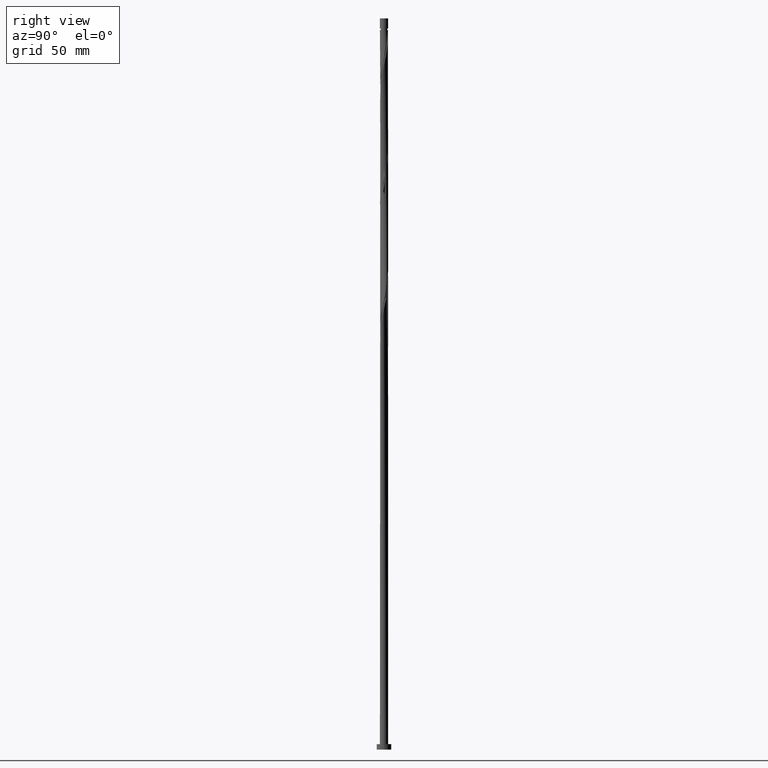
[diagram: clean part render]
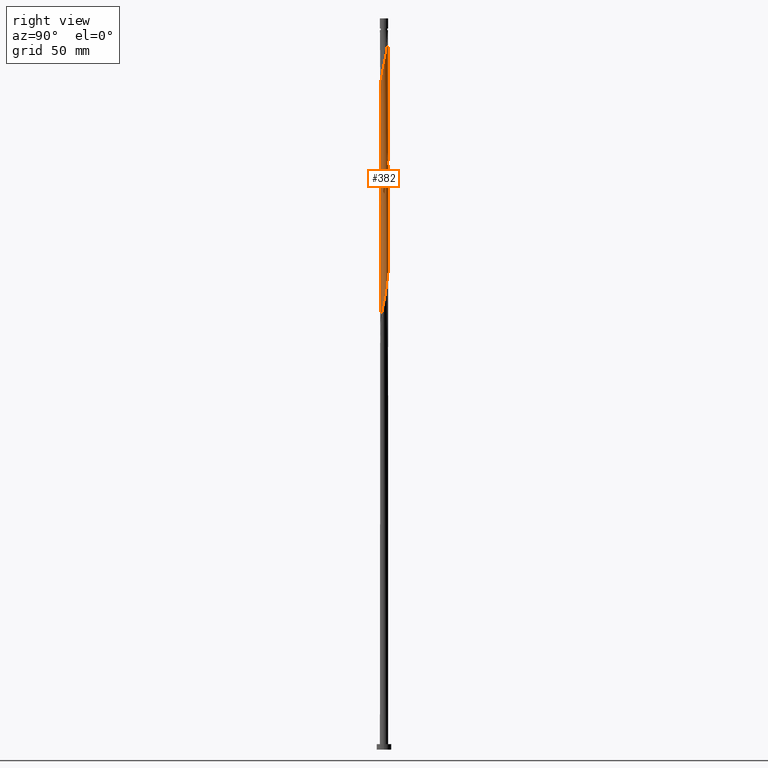
[diagram: same view with one face highlighted and labeled with its STEP entity id]
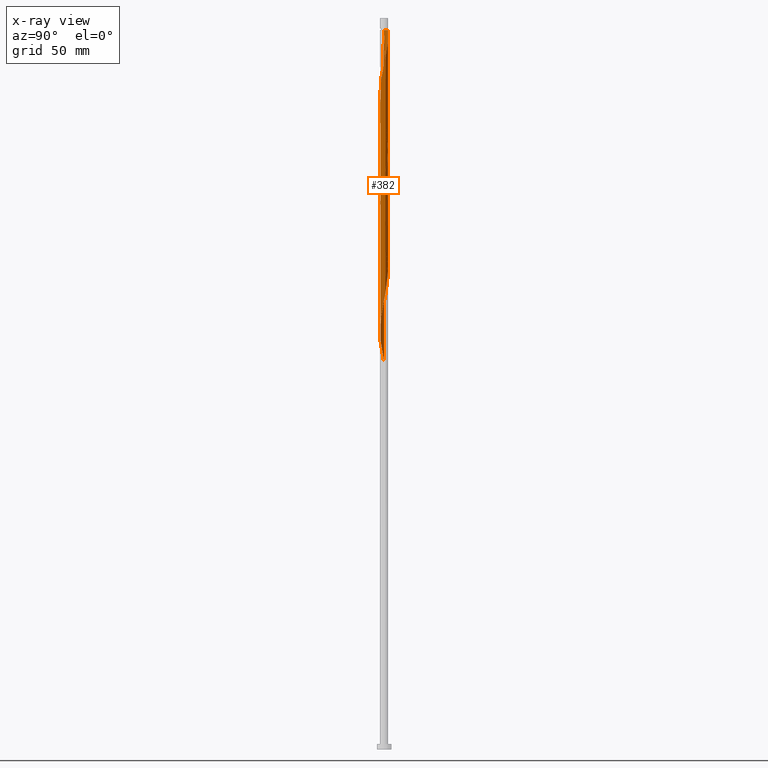
[diagram: x-ray of the same camera — body ghosted, the highlighted face saturated]
A machine part, right view. The second image highlights one B-rep face of the part: STEP entity #382.
The next image is the same camera in x-ray: the body ghosted, the highlighted face saturated — about 0% of this face is hidden behind the body in this view.
In plain terms, the highlighted cylindrical surface (bore or boss wall) has radius 2.25 mm, axis along (-0, -0, -1).
Its self-contained STEP definition (entity closure, byte-faithful):
#3 = CARTESIAN_POINT ( 'NONE',  ( 2.235440230695798114, 0.2555522940353255890, 246.9432032802033348 ) ) ;
#12 = EDGE_CURVE ( 'NONE', #1784, #830, #458, .T. ) ;
#15 = VECTOR ( 'NONE', #1606, 1000.000000000000000 ) ;
#16 = CARTESIAN_POINT ( 'NONE',  ( -2.217145756437552517, 0.4502106477325790168, 343.6098699468700488 ) ) ;
#21 = DIRECTION ( 'NONE',  ( -0.000000000000000000, -0.000000000000000000, -1.000000000000000000 ) ) ;
#22 = EDGE_CURVE ( 'NONE', #1098, #158, #1468, .T. ) ;
#23 = AXIS2_PLACEMENT_3D ( 'NONE', #1588, #313, #1311 ) ;
#38 = CARTESIAN_POINT ( 'NONE',  ( 0.2569599475139702771, -2.247753660434001599, 296.9432032802033063 ) ) ;
#49 = CARTESIAN_POINT ( 'NONE',  ( -0.8964053367179167786, -2.063724175441969511, 291.3876477246477634 ) ) ;
#55 = CARTESIAN_POINT ( 'NONE',  ( 0.000000000000000000, 0.000000000000000000, 393.6098699468699920 ) ) ;
#57 = VECTOR ( 'NONE', #747, 1000.000000000000000 ) ;
#59 = CARTESIAN_POINT ( 'NONE',  ( 1.148988371153736088, -1.948910119932245166, 234.7209810579811062 ) ) ;
#71 = CARTESIAN_POINT ( 'NONE',  ( 0.7186790202281153617, -2.145209872834075160, 299.1654255024255349 ) ) ;
#83 = CARTESIAN_POINT ( 'NONE',  ( 0.7186790202281153617, -2.145209872834075160, 232.4987588357588493 ) ) ;
#96 = CARTESIAN_POINT ( 'NONE',  ( 1.685713841995699624, 1.490257978641320147, 382.4987588357590198 ) ) ;
#101 = CARTESIAN_POINT ( 'NONE',  ( -2.249999999999999556, -1.091234325708519361E-15, 212.4019798570581656 ) ) ;
#106 = CARTESIAN_POINT ( 'NONE',  ( 2.058335775126532319, -0.9389775127526261977, 370.2765366135366776 ) ) ;
#115 = CARTESIAN_POINT ( 'NONE',  ( 1.148988371153740751, 1.948910119932247387, 385.8320921690922205 ) ) ;
#126 = CARTESIAN_POINT ( 'NONE',  ( 1.658299266918881409, -1.520704948810359447, 366.9432032802034200 ) ) ;
#144 = CARTESIAN_POINT ( 'NONE',  ( 2.250000000000000444, 0.1281909092544685491, 313.0075711664426876 ) ) ;
#158 = VERTEX_POINT ( 'NONE', #358 ) ;
#165 = CARTESIAN_POINT ( 'NONE',  ( -0.2569599475139706102, 2.247753660434001155, 330.2765366135365639 ) ) ;
#182 = CARTESIAN_POINT ( 'NONE',  ( 2.249999999999999556, 1.719067773376434329E-16, 312.4019798570580519 ) ) ;
#183 = CARTESIAN_POINT ( 'NONE',  ( -1.842346267189362896, 1.313082314401596618, 272.4987588357587924 ) ) ;
#201 = CARTESIAN_POINT ( 'NONE',  ( -1.498466736209437045, -1.694999225101496032, 288.0543143913143922 ) ) ;
#212 = CARTESIAN_POINT ( 'NONE',  ( -2.217145756437552517, 0.4502106477325790168, 276.9432032802031927 ) ) ;
#226 = CARTESIAN_POINT ( 'NONE',  ( 1.958719006165827281, -1.107212651158192118, 240.2765366135366776 ) ) ;
#228 = EDGE_CURVE ( 'NONE', #306, #1573, #1804, .T. ) ;
#239 = CARTESIAN_POINT ( 'NONE',  ( 0.7186790202281185813, 2.145209872834078713, 388.0543143913144490 ) ) ;
#240 = CARTESIAN_POINT ( 'NONE',  ( 1.842346267189362008, -1.313082314401597506, 305.8320921690921068 ) ) ;
#250 = CARTESIAN_POINT ( 'NONE',  ( 2.249999999999999556, 1.719067773376434329E-16, 312.4019798570580519 ) ) ;
#260 = CARTESIAN_POINT ( 'NONE',  ( -1.148988371153740085, -1.948910119932248275, 352.4987588357587356 ) ) ;
#262 = CARTESIAN_POINT ( 'NONE',  ( 2.250000000000000000, 2.755455298081544285E-16, 393.6098699468701057 ) ) ;
#273 = CARTESIAN_POINT ( 'NONE',  ( 0.02048521978840399382, 2.249906743794114927, 391.3876477246477066 ) ) ;
#281 = CARTESIAN_POINT ( 'NONE',  ( 2.075091745142295885, 0.9013429879147859536, 379.1654255024254780 ) ) ;
#292 = CARTESIAN_POINT ( 'NONE',  ( 1.339034893977880891, -1.808171881406644310, 302.4987588357588493 ) ) ;
#306 = VERTEX_POINT ( 'NONE', #574 ) ;
#313 = DIRECTION ( 'NONE',  ( -0.000000000000000000, -0.000000000000000000, -1.000000000000000000 ) ) ;
#320 = CARTESIAN_POINT ( 'NONE',  ( -0.9338336956909263353, 2.047059996383160829, 333.6098699468699351 ) ) ;
#328 = CARTESIAN_POINT ( 'NONE',  ( -1.339034893977881335, 1.808171881406644088, 335.8320921690923342 ) ) ;
#329 = CARTESIAN_POINT ( 'NONE',  ( -2.239722807784161773, 0.2148062948133313277, 278.0543143913145059 ) ) ;
#336 = CARTESIAN_POINT ( 'NONE',  ( 2.262299859130769253, 0.02059805810591510897, 245.8320921690921921 ) ) ;
#339 = CARTESIAN_POINT ( 'NONE',  ( -0.4477443466979827980, -2.204999999999999627, 293.6098699468699920 ) ) ;
#348 = CARTESIAN_POINT ( 'NONE',  ( -2.058335775126530098, -0.9389775127526234222, 283.6098699468699920 ) ) ;
#351 = DIRECTION ( 'NONE',  ( -0.000000000000000000, -0.000000000000000000, -1.000000000000000000 ) ) ;
#353 = CARTESIAN_POINT ( 'NONE',  ( -1.658299266918878745, -1.520704948810356116, 220.2765366135366207 ) ) ;
#358 = CARTESIAN_POINT ( 'NONE',  ( -2.250000000000000000, 3.587619700959514951E-16, 345.7353131903915369 ) ) ;
#382 = ADVANCED_FACE ( 'NONE', ( #546 ), #464, .T. ) ;
#396 = CARTESIAN_POINT ( 'NONE',  ( 1.685713841995694517, -1.490257978641320591, 304.7209810579811915 ) ) ;
#416 = CARTESIAN_POINT ( 'NONE',  ( 1.938233786377428158, -1.142694092635922587, 369.1654255024255917 ) ) ;
#426 = CARTESIAN_POINT ( 'NONE',  ( -2.217145756437556514, -0.4502106477325790723, 343.6098699468700488 ) ) ;
#435 = CARTESIAN_POINT ( 'NONE',  ( 1.529081416802029691, 1.667433642881044786, 383.6098699468698783 ) ) ;
#436 = CARTESIAN_POINT ( 'NONE',  ( 1.529081416802026361, -1.667433642881042122, 303.6098699468700488 ) ) ;
#440 = EDGE_LOOP ( 'NONE', ( #1396, #614, #484, #1175, #1591, #696, #739, #1016 ) ) ;
#444 = EDGE_CURVE ( 'NONE', #158, #830, #630, .T. ) ;
#446 = CARTESIAN_POINT ( 'NONE',  ( -0.02048521978840224869, 2.249906743794110930, 329.1654255024255917 ) ) ;
#458 = LINE ( 'NONE', #1305, #969 ) ;
#462 = CARTESIAN_POINT ( 'NONE',  ( 2.058335775126530542, 0.9389775127526232001, 250.2765366135366776 ) ) ;
#464 = CYLINDRICAL_SURFACE ( 'NONE', #23, 2.250000000000000000 ) ;
#473 = CARTESIAN_POINT ( 'NONE',  ( -2.250000000000000444, 3.587619700959514951E-16, 345.7353131903915369 ) ) ;
#482 = CARTESIAN_POINT ( 'NONE',  ( -2.075091745142291444, 0.9013429879147865087, 341.3876477246477066 ) ) ;
#483 = CARTESIAN_POINT ( 'NONE',  ( -1.938233786377425716, -1.142694092635919034, 284.7209810579811347 ) ) ;
#484 = ORIENTED_EDGE ( 'NONE', *, *, #228, .F. ) ;
#490 = CARTESIAN_POINT ( 'NONE',  ( 1.148988371153736088, -1.948910119932245166, 301.3876477246478203 ) ) ;
#495 = CARTESIAN_POINT ( 'NONE',  ( 0.4878194838710422920, -2.196481766634038379, 231.3876477246478487 ) ) ;
#498 = CARTESIAN_POINT ( 'NONE',  ( 0.2159895079371659254, 2.252059827154219818, 261.3876477246477066 ) ) ;
#522 = CARTESIAN_POINT ( 'NONE',  ( -0.6794991854587991709, -2.157940172845777660, 225.8320921690921921 ) ) ;
#527 = CARTESIAN_POINT ( 'NONE',  ( 1.958719006165827281, -1.107212651158192118, 306.9432032802033632 ) ) ;
#536 = CARTESIAN_POINT ( 'NONE',  ( 2.208580602260827863, -0.4905065299647383137, 372.4987588357589061 ) ) ;
#546 = FACE_OUTER_BOUND ( 'NONE', #440, .T. ) ;
#554 = CARTESIAN_POINT ( 'NONE',  ( 0.9338336956909291109, 2.047059996383163494, 386.9432032802032495 ) ) ;
#555 = CARTESIAN_POINT ( 'NONE',  ( 2.250000000000000444, -0.1076489983951914725, 311.8934313314941846 ) ) ;
#565 = CARTESIAN_POINT ( 'NONE',  ( 2.239722807784161773, -0.2148062948133320493, 311.3876477246478203 ) ) ;
#574 = CARTESIAN_POINT ( 'NONE',  ( -2.250000000000002665, 7.773176018745549002E-16, 341.4844267033483902 ) ) ;
#583 = CARTESIAN_POINT ( 'NONE',  ( 0.4477443466979830200, 2.204999999999999627, 326.9432032802033063 ) ) ;
#593 = CARTESIAN_POINT ( 'NONE',  ( 0.6794991854588006142, 2.157940172845777216, 325.8320921690922205 ) ) ;
#601 = CARTESIAN_POINT ( 'NONE',  ( 0.8964053367179171117, 2.063724175441969511, 324.7209810579811915 ) ) ;
#614 = ORIENTED_EDGE ( 'NONE', *, *, #1423, .T. ) ;
#619 = CARTESIAN_POINT ( 'NONE',  ( -0.9338336956909263353, 2.047059996383160829, 266.9432032802033063 ) ) ;
#630 =( BOUNDED_CURVE ( )  B_SPLINE_CURVE ( 2, ( #473, #1434, #1283, #16, #1031, #482, #1458, #1773, #1623, #882, #328, #1890, #320, #890, #1781, #165, #446, #752, #583, #593, #601, #1320, #736, #1474, #1466, #864, #1164, #1445, #1762, #721, #1021, #144, #182 ),
 .UNSPECIFIED., .F., .T. ) 
 B_SPLINE_CURVE_WITH_KNOTS ( ( 3, 2, 2, 2, 2, 2, 2, 2, 2, 2, 2, 2, 2, 2, 2, 2, 3 ),
 ( 0.4295286012773111839, 0.4333333333333333481, 0.4416666666666666519, 0.4500000000000000111, 0.4583333333333333148, 0.4666666666666666741, 0.4749999999999999778, 0.4833333333333333370, 0.4916666666666666408, 0.5000000000000000000, 0.5083333333333333037, 0.5166666666666667185, 0.5250000000000000222, 0.5333333333333333259, 0.5416666666666666297, 0.5500000000000000444, 0.5545286012773115170 ),
 .UNSPECIFIED. ) 
 CURVE ( )  GEOMETRIC_REPRESENTATION_ITEM ( )  RATIONAL_B_SPLINE_CURVE ( ( 0.9066196499552607868, 0.9068171577856734000, 0.9090909090909725654, 0.9041108139712207281, 0.9090909090909725654, 0.9041108139712207281, 0.9090909090909725654, 0.9041108139712207281, 0.9090909090909725654, 0.9041108139712207281, 0.9090909090909725654, 0.9041108139712207281, 0.9090909090909725654, 0.9041108139712207281, 0.9090909090909725654, 0.9041108139712207281, 0.9090909090909725654, 0.9041108139712207281, 0.9090909090909725654, 0.9041108139712207281, 0.9090909090909725654, 0.9041108139712207281, 0.9090909090909725654, 0.9041108139712207281, 0.9090909090909725654, 0.9041108139712207281, 0.9090909090909725654, 0.9041108139712207281, 0.9090909090909725654, 0.9041108139712207281, 0.9090909090909725654, 0.9063845652765196714, 0.9066196499552607868 ) ) 
 REPRESENTATION_ITEM ( '' )  );
#638 = CARTESIAN_POINT ( 'NONE',  ( -0.02048521978840224869, 2.249906743794110930, 262.4987588357589061 ) ) ;
#650 = CARTESIAN_POINT ( 'NONE',  ( -2.235440230695798114, -0.2555522940353258110, 213.6098699468700772 ) ) ;
#672 = CARTESIAN_POINT ( 'NONE',  ( 2.262299859130773694, -0.02059805810591844311, 374.7209810579810210 ) ) ;
#675 = EDGE_CURVE ( 'NONE', #306, #1268, #1755, .T. ) ;
#680 = CARTESIAN_POINT ( 'NONE',  ( 1.958719006165831056, 1.107212651158192784, 380.2765366135366776 ) ) ;
#692 = CARTESIAN_POINT ( 'NONE',  ( -1.842346267189367337, -1.313082314401598394, 348.0543143913143354 ) ) ;
#696 = ORIENTED_EDGE ( 'NONE', *, *, #12, .F. ) ;
#702 = CARTESIAN_POINT ( 'NONE',  ( 0.2569599475139721645, 2.247753660434005152, 390.2765366135366776 ) ) ;
#721 = CARTESIAN_POINT ( 'NONE',  ( 2.208580602260824755, 0.4905065299647340393, 314.7209810579810778 ) ) ;
#736 = CARTESIAN_POINT ( 'NONE',  ( 1.305889112093236326, 1.832253701569827919, 322.4987588357589061 ) ) ;
#739 = ORIENTED_EDGE ( 'NONE', *, *, #12, .T. ) ;
#747 = DIRECTION ( 'NONE',  ( -0.000000000000000000, -0.000000000000000000, -1.000000000000000000 ) ) ;
#749 = CARTESIAN_POINT ( 'NONE',  ( 0.8964053367179171117, 2.063724175441969511, 258.0543143913145059 ) ) ;
#752 = CARTESIAN_POINT ( 'NONE',  ( 0.2159895079371659254, 2.252059827154219818, 328.0543143913144490 ) ) ;
#753 = CARTESIAN_POINT ( 'NONE',  ( -0.2159895079371669246, -2.252059827154220706, 294.7209810579811347 ) ) ;
#758 = CARTESIAN_POINT ( 'NONE',  ( 2.146118750789921759, -0.6757768178236842616, 242.4987588357589061 ) ) ;
#779 = CARTESIAN_POINT ( 'NONE',  ( -1.305889112093234994, -1.832253701569828808, 222.4987588357589061 ) ) ;
#789 = CARTESIAN_POINT ( 'NONE',  ( -1.818131797628320667, -1.346410672519214868, 219.1654255024255065 ) ) ;
#797 = CARTESIAN_POINT ( 'NONE',  ( 2.217145756437552517, -0.4502106477325793499, 243.6098699468699351 ) ) ;
#807 = CARTESIAN_POINT ( 'NONE',  ( -2.075091745142295441, -0.9013429879147869528, 345.8320921690922773 ) ) ;
#816 = CARTESIAN_POINT ( 'NONE',  ( -2.146118750789926644, -0.6757768178236830403, 344.7209810579810778 ) ) ;
#825 = CARTESIAN_POINT ( 'NONE',  ( 1.305889112093235882, -1.832253701569833249, 364.7209810579810778 ) ) ;
#830 = VERTEX_POINT ( 'NONE', #913 ) ;
#834 = CARTESIAN_POINT ( 'NONE',  ( 0.4878194838710463443, 2.196481766634041044, 389.1654255024256486 ) ) ;
#851 = CARTESIAN_POINT ( 'NONE',  ( 1.498466736209437267, 1.694999225101495144, 254.7209810579810778 ) ) ;
#861 = CARTESIAN_POINT ( 'NONE',  ( 2.208580602260824755, 0.4905065299647340393, 248.0543143913144775 ) ) ;
#864 = CARTESIAN_POINT ( 'NONE',  ( 1.818131797628321555, 1.346410672519213536, 319.1654255024255349 ) ) ;
#873 = CARTESIAN_POINT ( 'NONE',  ( 0.6794991854588006142, 2.157940172845777216, 259.1654255024254780 ) ) ;
#882 = CARTESIAN_POINT ( 'NONE',  ( -1.529081416802026583, 1.667433642881041900, 336.9432032802034200 ) ) ;
#886 = CIRCLE ( 'NONE', #1159, 2.249999999999964029 ) ;
#890 = CARTESIAN_POINT ( 'NONE',  ( -0.7186790202281158058, 2.145209872834075160, 332.4987588357589630 ) ) ;
#891 = CARTESIAN_POINT ( 'NONE',  ( -2.133458188693677204, -0.7147420213586793691, 282.4987588357589630 ) ) ;
#900 = CARTESIAN_POINT ( 'NONE',  ( -1.339034893977881335, 1.808171881406644088, 269.1654255024254780 ) ) ;
#911 = CARTESIAN_POINT ( 'NONE',  ( -2.208580602260824755, -0.4905065299647350385, 281.3876477246477634 ) ) ;
#913 = CARTESIAN_POINT ( 'NONE',  ( 2.249999999999999556, 1.719067773376434329E-16, 312.4019798570581088 ) ) ;
#927 = CARTESIAN_POINT ( 'NONE',  ( -1.498466736209437045, -1.694999225101496032, 221.3876477246477918 ) ) ;
#952 = CARTESIAN_POINT ( 'NONE',  ( -0.02048521978840372668, -2.249906743794114927, 358.0543143913145059 ) ) ;
#968 = CARTESIAN_POINT ( 'NONE',  ( 2.133458188693681201, -0.7147420213586823667, 371.3876477246477634 ) ) ;
#969 = VECTOR ( 'NONE', #21, 1000.000000000000000 ) ;
#978 = CARTESIAN_POINT ( 'NONE',  ( 1.498466736209437933, -1.694999225101500251, 365.8320921690920500 ) ) ;
#988 = CARTESIAN_POINT ( 'NONE',  ( -0.4878194838710451786, -2.196481766634041044, 355.8320921690921637 ) ) ;
#996 = CARTESIAN_POINT ( 'NONE',  ( 2.133458188693677648, 0.7147420213586779258, 249.1654255024255917 ) ) ;
#1000 =( BOUNDED_CURVE ( )  B_SPLINE_CURVE ( 2, ( #250, #555, #565, #1116, #1127, #1724, #527, #240, #396, #436, #292, #490, #1041, #71, #1195, #38, #1507, #753, #339, #1052, #49, #1330, #1807, #201, #1782, #1643, #483, #348, #891, #911, #1475, #1654, #329, #212, #1321, #1354, #1796, #183, #1032, #1495, #900, #1345, #619, #1183, #1635, #1486, #638, #498, #1059, #873, #749, #1038, #1300, #851, #1613, #1150, #1753, #462, #996, #861, #3, #336, #1341, #797, #758, #1791, #226, #1664, #1813, #1368, #1802, #59, #1204, #83, #495, #1056, #1650, #1224, #1831, #522, #1640, #1482, #779, #927, #353, #789, #1361, #1503, #1083, #1351, #650, #1217, #101 ),
 .UNSPECIFIED., .F., .T. ) 
 B_SPLINE_CURVE_WITH_KNOTS ( ( 3, 2, 2, 2, 2, 2, 2, 2, 2, 2, 2, 2, 2, 2, 2, 2, 2, 2, 2, 2, 2, 2, 2, 2, 2, 2, 2, 2, 2, 2, 2, 2, 2, 2, 2, 2, 2, 2, 2, 2, 2, 2, 2, 2, 2, 2, 3 ),
 ( 0.5545286012773115170, 0.5583333333333333481, 0.5666666666666666519, 0.5749999999999999556, 0.5833333333333333703, 0.5916666666666666741, 0.5999999999999999778, 0.6083333333333332815, 0.6166666666666666963, 0.6250000000000000000, 0.6333333333333333037, 0.6416666666666667185, 0.6500000000000000222, 0.6583333333333333259, 0.6666666666666666297, 0.6750000000000000444, 0.6833333333333333481, 0.6916666666666666519, 0.6999999999999999556, 0.7083333333333333703, 0.7166666666666666741, 0.7249999999999999778, 0.7333333333333332815, 0.7416666666666666963, 0.7500000000000000000, 0.7583333333333333037, 0.7666666666666667185, 0.7750000000000000222, 0.7833333333333333259, 0.7916666666666666297, 0.8000000000000000444, 0.8083333333333333481, 0.8166666666666666519, 0.8249999999999999556, 0.8333333333333333703, 0.8416666666666666741, 0.8499999999999999778, 0.8583333333333332815, 0.8666666666666666963, 0.8750000000000000000, 0.8833333333333333037, 0.8916666666666667185, 0.9000000000000001332, 0.9083333333333334370, 0.9166666666666667407, 0.9250000000000000444, 0.9295286012773114059 ),
 .UNSPECIFIED. ) 
 CURVE ( )  GEOMETRIC_REPRESENTATION_ITEM ( )  RATIONAL_B_SPLINE_CURVE ( ( 0.9066196499552607868, 0.9068171577856736221, 0.9090909090909725654, 0.9041108139712207281, 0.9090909090909725654, 0.9041108139712207281, 0.9090909090909725654, 0.9041108139712207281, 0.9090909090909725654, 0.9041108139712207281, 0.9090909090909725654, 0.9041108139712207281, 0.9090909090909725654, 0.9041108139712207281, 0.9090909090909725654, 0.9041108139712207281, 0.9090909090909725654, 0.9041108139712207281, 0.9090909090909725654, 0.9041108139712207281, 0.9090909090909725654, 0.9041108139712207281, 0.9090909090909725654, 0.9041108139712207281, 0.9090909090909725654, 0.9041108139712207281, 0.9090909090909725654, 0.9041108139712207281, 0.9090909090909725654, 0.9041108139712207281, 0.9090909090909725654, 0.9041108139712207281, 0.9090909090909725654, 0.9041108139712207281, 0.9090909090909725654, 0.9041108139712207281, 0.9090909090909725654, 0.9041108139712207281, 0.9090909090909725654, 0.9041108139712207281, 0.9090909090909725654, 0.9041108139712207281, 0.9090909090909725654, 0.9041108139712207281, 0.9090909090909725654, 0.9041108139712207281, 0.9090909090909725654, 0.9041108139712207281, 0.9090909090909725654, 0.9041108139712207281, 0.9090909090909725654, 0.9041108139712207281, 0.9090909090909725654, 0.9041108139712207281, 0.9090909090909725654, 0.9041108139712207281, 0.9090909090909725654, 0.9041108139712207281, 0.9090909090909725654, 0.9041108139712207281, 0.9090909090909725654, 0.9041108139712207281, 0.9090909090909725654, 0.9041108139712207281, 0.9090909090909725654, 0.9041108139712207281, 0.9090909090909725654, 0.9041108139712207281, 0.9090909090909725654, 0.9041108139712207281, 0.9090909090909725654, 0.9041108139712207281, 0.9090909090909725654, 0.9041108139712207281, 0.9090909090909725654, 0.9041108139712207281, 0.9090909090909725654, 0.9041108139712207281, 0.9090909090909725654, 0.9041108139712207281, 0.9090909090909725654, 0.9041108139712207281, 0.9090909090909725654, 0.9041108139712207281, 0.9090909090909725654, 0.9041108139712207281, 0.9090909090909725654, 0.9041108139712207281, 0.9090909090909725654, 0.9041108139712207281, 0.9090909090909725654, 0.9063845652765196714, 0.9066196499552608978 ) ) 
 REPRESENTATION_ITEM ( '' )  );
#1013 = CARTESIAN_POINT ( 'NONE',  ( -2.250000000000000000, 0.000000000000000000, 400.0000000000000000 ) ) ;
#1016 = ORIENTED_EDGE ( 'NONE', *, *, #444, .F. ) ;
#1018 = EDGE_CURVE ( 'NONE', #830, #1268, #1000, .T. ) ;
#1021 = CARTESIAN_POINT ( 'NONE',  ( 2.235440230695798114, 0.2555522940353255890, 313.6098699468699920 ) ) ;
#1026 = CARTESIAN_POINT ( 'NONE',  ( -2.250000000000000000, 0.000000000000000000, 400.0000000000000000 ) ) ;
#1031 = CARTESIAN_POINT ( 'NONE',  ( -2.146118750789922203, 0.6757768178236830403, 342.4987588357589630 ) ) ;
#1032 = CARTESIAN_POINT ( 'NONE',  ( -1.685713841995694739, 1.490257978641319481, 271.3876477246478203 ) ) ;
#1038 = CARTESIAN_POINT ( 'NONE',  ( 1.113311487977033387, 1.969508178038161583, 256.9432032802033063 ) ) ;
#1041 = CARTESIAN_POINT ( 'NONE',  ( 0.9338336956909261133, -2.047059996383160829, 300.2765366135366776 ) ) ;
#1052 = CARTESIAN_POINT ( 'NONE',  ( -0.6794991854587991709, -2.157940172845777660, 292.4987588357588493 ) ) ;
#1056 = CARTESIAN_POINT ( 'NONE',  ( 0.2569599475139702771, -2.247753660434001599, 230.2765366135366776 ) ) ;
#1059 = CARTESIAN_POINT ( 'NONE',  ( 0.4477443466979830200, 2.204999999999999627, 260.2765366135367344 ) ) ;
#1083 = CARTESIAN_POINT ( 'NONE',  ( -2.133458188693677204, -0.7147420213586793691, 215.8320921690922489 ) ) ;
#1095 = CARTESIAN_POINT ( 'NONE',  ( 0.4477443466979825759, -2.205000000000003180, 360.2765366135365639 ) ) ;
#1098 = VERTEX_POINT ( 'NONE', #1491 ) ;
#1105 = CARTESIAN_POINT ( 'NONE',  ( -2.239722807784164438, -0.2148062948133304950, 342.4987588357590198 ) ) ;
#1115 = CARTESIAN_POINT ( 'NONE',  ( -0.9338336956909288888, -2.047059996383163494, 353.6098699468700488 ) ) ;
#1116 = CARTESIAN_POINT ( 'NONE',  ( 2.217145756437552517, -0.4502106477325793499, 310.2765366135366776 ) ) ;
#1125 = CARTESIAN_POINT ( 'NONE',  ( -0.4477443466980506326, 2.205000000000589377, 393.6098699468701057 ) ) ;
#1127 = CARTESIAN_POINT ( 'NONE',  ( 2.146118750789921759, -0.6757768178236842616, 309.1654255024256486 ) ) ;
#1150 = CARTESIAN_POINT ( 'NONE',  ( 1.818131797628321555, 1.346410672519213536, 252.4987588357589630 ) ) ;
#1159 = AXIS2_PLACEMENT_3D ( 'NONE', #55, #351, #1178 ) ;
#1164 = CARTESIAN_POINT ( 'NONE',  ( 1.938233786377425716, 1.142694092635918812, 318.0543143913146196 ) ) ;
#1175 = ORIENTED_EDGE ( 'NONE', *, *, #675, .T. ) ;
#1178 = DIRECTION ( 'NONE',  ( -1.000000000000000000, 0.000000000000000000, 0.000000000000000000 ) ) ;
#1183 = CARTESIAN_POINT ( 'NONE',  ( -0.7186790202281158058, 2.145209872834075160, 265.8320921690922205 ) ) ;
#1195 = CARTESIAN_POINT ( 'NONE',  ( 0.4878194838710422920, -2.196481766634038379, 298.0543143913145059 ) ) ;
#1196 = CARTESIAN_POINT ( 'NONE',  ( -0.4477443466980506326, 2.205000000000589377, 393.6098699468701057 ) ) ;
#1204 = CARTESIAN_POINT ( 'NONE',  ( 0.9338336956909261133, -2.047059996383160829, 233.6098699468700204 ) ) ;
#1217 = CARTESIAN_POINT ( 'NONE',  ( -2.250000000000000444, -0.1281909092544724904, 213.0075711664426876 ) ) ;
#1224 = CARTESIAN_POINT ( 'NONE',  ( -0.2159895079371669246, -2.252059827154220706, 228.0543143913144206 ) ) ;
#1236 = CARTESIAN_POINT ( 'NONE',  ( -2.250000000000002665, 7.773176018745549002E-16, 341.4844267033483902 ) ) ;
#1245 = CARTESIAN_POINT ( 'NONE',  ( -0.7186790202281182482, -2.145209872834078713, 354.7209810579811347 ) ) ;
#1255 = CARTESIAN_POINT ( 'NONE',  ( -0.2569599475139717204, -2.247753660434005152, 356.9432032802032495 ) ) ;
#1264 = CARTESIAN_POINT ( 'NONE',  ( -0.2159895079371639826, 2.252059827154224259, 392.4987588357589061 ) ) ;
#1268 = VERTEX_POINT ( 'NONE', #1658 ) ;
#1274 = CARTESIAN_POINT ( 'NONE',  ( 0.2159895079371652871, -2.252059827154224259, 359.1654255024254780 ) ) ;
#1283 = CARTESIAN_POINT ( 'NONE',  ( -2.239722807784161773, 0.2148062948133313277, 344.7209810579811915 ) ) ;
#1300 = CARTESIAN_POINT ( 'NONE',  ( 1.305889112093236326, 1.832253701569827919, 255.8320921690921921 ) ) ;
#1305 = CARTESIAN_POINT ( 'NONE',  ( 2.250000000000000000, 2.755455298081544285E-16, 400.0000000000000000 ) ) ;
#1311 = DIRECTION ( 'NONE',  ( -1.000000000000000000, 0.000000000000000000, 0.000000000000000000 ) ) ;
#1320 = CARTESIAN_POINT ( 'NONE',  ( 1.113311487977033387, 1.969508178038161583, 323.6098699468700488 ) ) ;
#1321 = CARTESIAN_POINT ( 'NONE',  ( -2.146118750789922203, 0.6757768178236830403, 275.8320921690922773 ) ) ;
#1330 = CARTESIAN_POINT ( 'NONE',  ( -1.113311487977033165, -1.969508178038161583, 290.2765366135366207 ) ) ;
#1341 = CARTESIAN_POINT ( 'NONE',  ( 2.239722807784161773, -0.2148062948133320493, 244.7209810579811631 ) ) ;
#1345 = CARTESIAN_POINT ( 'NONE',  ( -1.148988371153736976, 1.948910119932245166, 268.0543143913144490 ) ) ;
#1351 = CARTESIAN_POINT ( 'NONE',  ( -2.208580602260824755, -0.4905065299647350385, 214.7209810579810494 ) ) ;
#1354 = CARTESIAN_POINT ( 'NONE',  ( -2.075091745142291444, 0.9013429879147865087, 274.7209810579811347 ) ) ;
#1361 = CARTESIAN_POINT ( 'NONE',  ( -1.938233786377425716, -1.142694092635919034, 218.0543143913145059 ) ) ;
#1368 = CARTESIAN_POINT ( 'NONE',  ( 1.529081416802026361, -1.667433642881042122, 236.9432032802032779 ) ) ;
#1392 = CARTESIAN_POINT ( 'NONE',  ( 1.818131797628322888, -1.346410672519218421, 368.0543143913144490 ) ) ;
#1396 = ORIENTED_EDGE ( 'NONE', *, *, #22, .F. ) ;
#1404 = CARTESIAN_POINT ( 'NONE',  ( 1.339034893977885332, 1.808171881406645642, 384.7209810579810778 ) ) ;
#1415 = CARTESIAN_POINT ( 'NONE',  ( -1.958719006165831056, -1.107212651158192784, 346.9432032802033632 ) ) ;
#1423 = EDGE_CURVE ( 'NONE', #1098, #1573, #886, .T. ) ;
#1424 = CARTESIAN_POINT ( 'NONE',  ( 2.239722807784165326, 0.2148062948133293015, 375.8320921690921637 ) ) ;
#1434 = CARTESIAN_POINT ( 'NONE',  ( -2.250000000000000888, 0.1076489983951817858, 345.2267646648274990 ) ) ;
#1445 = CARTESIAN_POINT ( 'NONE',  ( 2.058335775126530542, 0.9389775127526232001, 316.9432032802033063 ) ) ;
#1458 = CARTESIAN_POINT ( 'NONE',  ( -1.958719006165827281, 1.107212651158191452, 340.2765366135367344 ) ) ;
#1466 = CARTESIAN_POINT ( 'NONE',  ( 1.658299266918879189, 1.520704948810356116, 320.2765366135365070 ) ) ;
#1468 = LINE ( 'NONE', #1026, #57 ) ;
#1474 = CARTESIAN_POINT ( 'NONE',  ( 1.498466736209437267, 1.694999225101495144, 321.3876477246477066 ) ) ;
#1475 = CARTESIAN_POINT ( 'NONE',  ( -2.235440230695798114, -0.2555522940353258110, 280.2765366135366776 ) ) ;
#1482 = CARTESIAN_POINT ( 'NONE',  ( -1.113311487977033165, -1.969508178038161583, 223.6098699468699920 ) ) ;
#1486 = CARTESIAN_POINT ( 'NONE',  ( -0.2569599475139706102, 2.247753660434001155, 263.6098699468699920 ) ) ;
#1491 = CARTESIAN_POINT ( 'NONE',  ( -2.249999999999964029, 0.000000000000000000, 393.6098699468699920 ) ) ;
#1495 = CARTESIAN_POINT ( 'NONE',  ( -1.529081416802026583, 1.667433642881041900, 270.2765366135366776 ) ) ;
#1503 = CARTESIAN_POINT ( 'NONE',  ( -2.058335775126530098, -0.9389775127526234222, 216.9432032802033348 ) ) ;
#1507 = CARTESIAN_POINT ( 'NONE',  ( 0.02048521978840171440, -2.249906743794110930, 295.8320921690921637 ) ) ;
#1558 = CARTESIAN_POINT ( 'NONE',  ( -2.250000000000003997, -0.1076489983951769008, 341.9929752289124849 ) ) ;
#1569 = CARTESIAN_POINT ( 'NONE',  ( 2.235440230695801667, -0.2555522940353273098, 373.6098699468699920 ) ) ;
#1573 = VERTEX_POINT ( 'NONE', #1196 ) ;
#1579 = CARTESIAN_POINT ( 'NONE',  ( -1.685713841995698958, -1.490257978641321257, 349.1654255024255349 ) ) ;
#1588 = CARTESIAN_POINT ( 'NONE',  ( 0.000000000000000000, 0.000000000000000000, 400.0000000000000000 ) ) ;
#1591 = ORIENTED_EDGE ( 'NONE', *, *, #1018, .F. ) ;
#1606 = DIRECTION ( 'NONE',  ( -0.000000000000000000, -0.000000000000000000, -1.000000000000000000 ) ) ;
#1613 = CARTESIAN_POINT ( 'NONE',  ( 1.658299266918879189, 1.520704948810356116, 253.6098699468700204 ) ) ;
#1623 = CARTESIAN_POINT ( 'NONE',  ( -1.685713841995694739, 1.490257978641319481, 338.0543143913143922 ) ) ;
#1635 = CARTESIAN_POINT ( 'NONE',  ( -0.4878194838710431802, 2.196481766634038379, 264.7209810579811347 ) ) ;
#1640 = CARTESIAN_POINT ( 'NONE',  ( -0.8964053367179167786, -2.063724175441969511, 224.7209810579811347 ) ) ;
#1643 = CARTESIAN_POINT ( 'NONE',  ( -1.818131797628320667, -1.346410672519214868, 285.8320921690921068 ) ) ;
#1650 = CARTESIAN_POINT ( 'NONE',  ( 0.02048521978840171440, -2.249906743794110930, 229.1654255024255917 ) ) ;
#1654 = CARTESIAN_POINT ( 'NONE',  ( -2.262299859130769697, -0.02059805810591643777, 279.1654255024255349 ) ) ;
#1658 = CARTESIAN_POINT ( 'NONE',  ( -2.249999999999999556, -1.091234325708519361E-15, 212.4019798570581656 ) ) ;
#1664 = CARTESIAN_POINT ( 'NONE',  ( 1.842346267189362008, -1.313082314401597506, 239.1654255024255065 ) ) ;
#1695 = CARTESIAN_POINT ( 'NONE',  ( 2.217145756437556514, 0.4502106477325789058, 376.9432032802033632 ) ) ;
#1704 = CARTESIAN_POINT ( 'NONE',  ( 0.6794991854587989488, -2.157940172845781657, 361.3876477246477634 ) ) ;
#1713 = CARTESIAN_POINT ( 'NONE',  ( 0.8964053367179166676, -2.063724175441973951, 362.4987588357589061 ) ) ;
#1724 = CARTESIAN_POINT ( 'NONE',  ( 2.075091745142291000, -0.9013429879147871748, 308.0543143913145059 ) ) ;
#1732 = CARTESIAN_POINT ( 'NONE',  ( 2.146118750789926644, 0.6757768178236822632, 378.0543143913145627 ) ) ;
#1753 = CARTESIAN_POINT ( 'NONE',  ( 1.938233786377425716, 1.142694092635918812, 251.3876477246477918 ) ) ;
#1755 = LINE ( 'NONE', #1013, #15 ) ;
#1762 = CARTESIAN_POINT ( 'NONE',  ( 2.133458188693677648, 0.7147420213586779258, 315.8320921690922205 ) ) ;
#1773 = CARTESIAN_POINT ( 'NONE',  ( -1.842346267189362896, 1.313082314401596618, 339.1654255024254780 ) ) ;
#1781 = CARTESIAN_POINT ( 'NONE',  ( -0.4878194838710431802, 2.196481766634038379, 331.3876477246478203 ) ) ;
#1782 = CARTESIAN_POINT ( 'NONE',  ( -1.658299266918878745, -1.520704948810356116, 286.9432032802034200 ) ) ;
#1784 = VERTEX_POINT ( 'NONE', #262 ) ;
#1791 = CARTESIAN_POINT ( 'NONE',  ( 2.075091745142291000, -0.9013429879147871748, 241.3876477246477350 ) ) ;
#1796 = CARTESIAN_POINT ( 'NONE',  ( -1.958719006165827281, 1.107212651158191452, 273.6098699468699920 ) ) ;
#1802 = CARTESIAN_POINT ( 'NONE',  ( 1.339034893977880891, -1.808171881406644310, 235.8320921690922489 ) ) ;
#1804 =( BOUNDED_CURVE ( )  B_SPLINE_CURVE ( 2, ( #1236, #1558, #1105, #426, #816, #807, #1415, #692, #1579, #1844, #1872, #260, #1115, #1245, #988, #1255, #952, #1274, #1095, #1704, #1713, #1882, #825, #978, #126, #1392, #416, #106, #968, #536, #1569, #672, #1424, #1695, #1732, #281, #680, #1865, #96, #435, #1404, #115, #554, #239, #834, #702, #273, #1264, #1125 ),
 .UNSPECIFIED., .F., .T. ) 
 B_SPLINE_CURVE_WITH_KNOTS ( ( 3, 2, 2, 2, 2, 2, 2, 2, 2, 2, 2, 2, 2, 2, 2, 2, 2, 2, 2, 2, 2, 2, 2, 2, 3 ),
 ( 0.5545286012773110729, 0.5583333333333333481, 0.5666666666666666519, 0.5749999999999999556, 0.5833333333333332593, 0.5916666666666666741, 0.5999999999999999778, 0.6083333333333333925, 0.6166666666666666963, 0.6250000000000000000, 0.6333333333333333037, 0.6416666666666666075, 0.6500000000000000222, 0.6583333333333333259, 0.6666666666666667407, 0.6750000000000000444, 0.6833333333333333481, 0.6916666666666666519, 0.6999999999999999556, 0.7083333333333332593, 0.7166666666666666741, 0.7249999999999999778, 0.7333333333333333925, 0.7416666666666666963, 0.7500000000000000000 ),
 .UNSPECIFIED. ) 
 CURVE ( )  GEOMETRIC_REPRESENTATION_ITEM ( )  RATIONAL_B_SPLINE_CURVE ( ( 0.9066196499552687804, 0.9068171577856811716, 0.9090909090909804480, 0.9041108139712286107, 0.9090909090909804480, 0.9041108139712286107, 0.9090909090909804480, 0.9041108139712286107, 0.9090909090909804480, 0.9041108139712286107, 0.9090909090909804480, 0.9041108139712286107, 0.9090909090909804480, 0.9041108139712286107, 0.9090909090909804480, 0.9041108139712286107, 0.9090909090909804480, 0.9041108139712286107, 0.9090909090909804480, 0.9041108139712286107, 0.9090909090909804480, 0.9041108139712286107, 0.9090909090909804480, 0.9041108139712286107, 0.9090909090909804480, 0.9041108139712286107, 0.9090909090909804480, 0.9041108139712286107, 0.9090909090909804480, 0.9041108139712286107, 0.9090909090909804480, 0.9041108139712286107, 0.9090909090909804480, 0.9041108139712286107, 0.9090909090909804480, 0.9041108139712286107, 0.9090909090909804480, 0.9041108139712286107, 0.9090909090909804480, 0.9041108139712286107, 0.9090909090909804480, 0.9041108139712286107, 0.9090909090909804480, 0.9041108139712286107, 0.9090909090909804480, 0.9041108139712286107, 0.9090909090909804480, 0.9041108139712286107, 0.9090909090909804480 ) ) 
 REPRESENTATION_ITEM ( '' )  );
#1807 = CARTESIAN_POINT ( 'NONE',  ( -1.305889112093234994, -1.832253701569828808, 289.1654255024255349 ) ) ;
#1813 = CARTESIAN_POINT ( 'NONE',  ( 1.685713841995694517, -1.490257978641320591, 238.0543143913144206 ) ) ;
#1831 = CARTESIAN_POINT ( 'NONE',  ( -0.4477443466979827980, -2.204999999999999627, 226.9432032802033632 ) ) ;
#1844 = CARTESIAN_POINT ( 'NONE',  ( -1.529081416802029691, -1.667433642881045008, 350.2765366135366207 ) ) ;
#1865 = CARTESIAN_POINT ( 'NONE',  ( 1.842346267189367559, 1.313082314401597728, 381.3876477246477634 ) ) ;
#1872 = CARTESIAN_POINT ( 'NONE',  ( -1.339034893977885110, -1.808171881406646087, 351.3876477246477634 ) ) ;
#1882 = CARTESIAN_POINT ( 'NONE',  ( 1.113311487977034053, -1.969508178038165802, 363.6098699468699920 ) ) ;
#1890 = CARTESIAN_POINT ( 'NONE',  ( -1.148988371153736976, 1.948910119932245166, 334.7209810579810210 ) ) ;